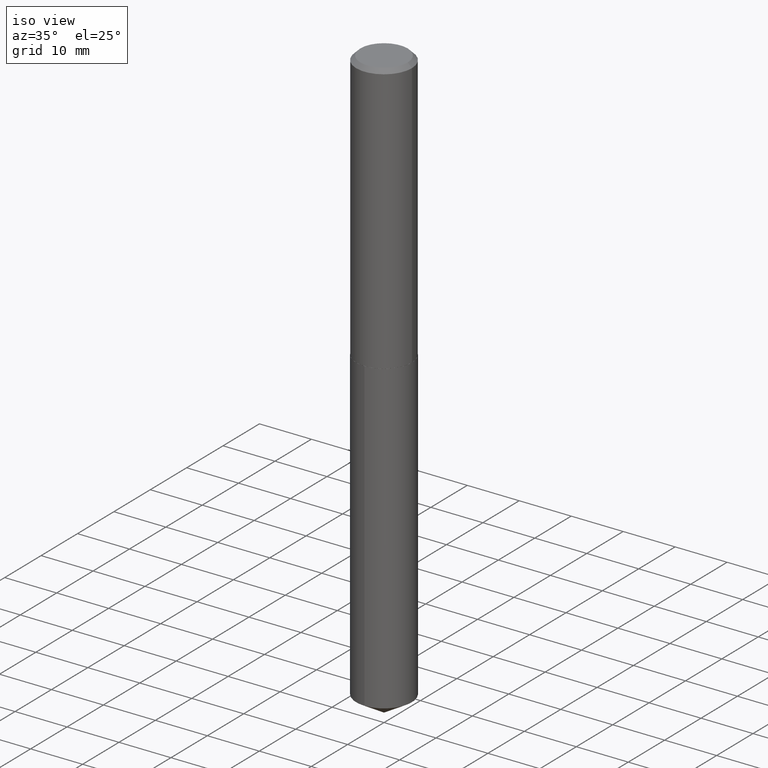
[diagram: clean part render]
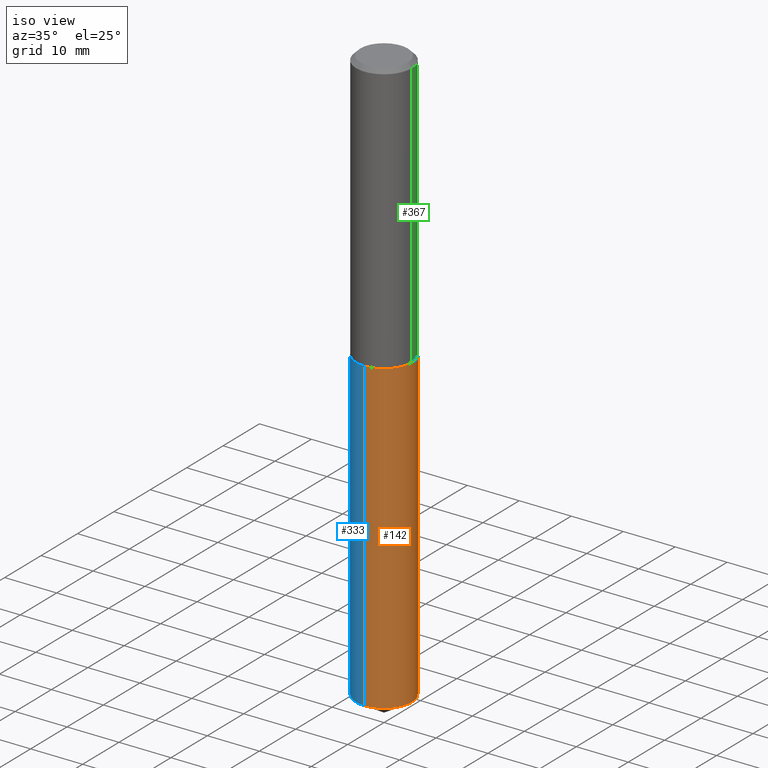
[diagram: same view with three faces highlighted in distinct colors, each labeled with its STEP entity id]
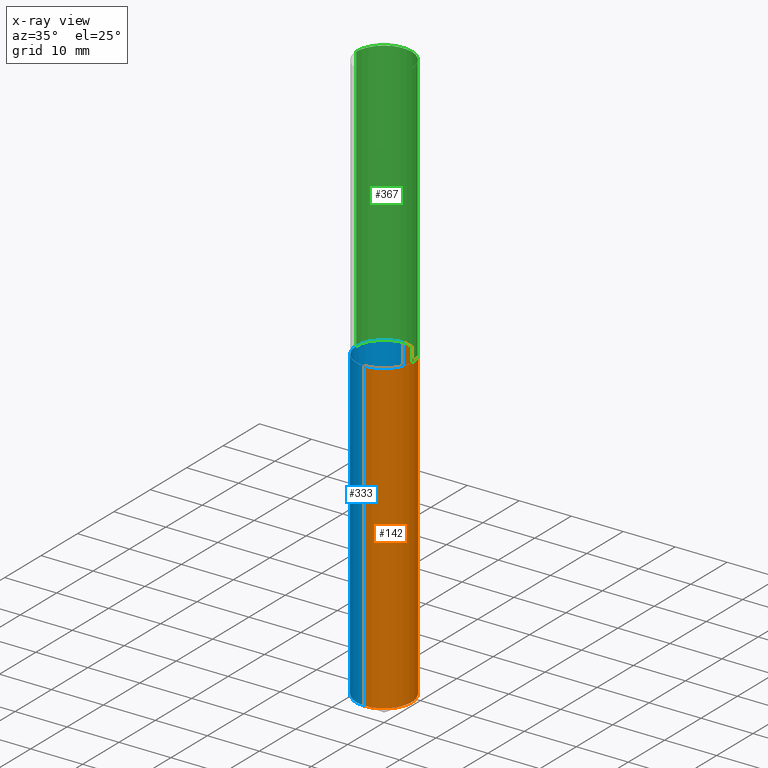
[diagram: x-ray of the same camera — body ghosted, the three highlighted faces saturated]
A machine part, iso view with three faces highlighted in distinct colors.
The next image is the same camera in x-ray (body ghosted, the three faces saturated) — at least one of them is partly hidden behind the body in this view.
Their STEP definitions:

[orange] entity #142 — the highlighted cylindrical surface (edge-blend (fillet) strip) has radius 5.3581 mm, axis along (-0, 0, 1).
#3 = EDGE_CURVE ( 'NONE', #141, #115, #196, .T. ) ;
#7 = CARTESIAN_POINT ( 'NONE',  ( -1.473055976857811069E-15, -0.2109500000000152919, -4.373248452416135912 ) ) ;
#19 = CIRCLE ( 'NONE', #301, 0.2109499999999999986 ) ;
#32 = CIRCLE ( 'NONE', #137, 0.2109499999999999986 ) ;
#36 = VECTOR ( 'NONE', #256, 39.37007874015748143 ) ;
#77 = ORIENTED_EDGE ( 'NONE', *, *, #359, .F. ) ;
#80 = CARTESIAN_POINT ( 'NONE',  ( 1.498889901085981031E-15, 0.2109499999999928654, -2.046900000000000830 ) ) ;
#81 = DIRECTION ( 'NONE',  ( -2.445408296409078411E-29, 3.491567992286463657E-15, 1.000000000000000000 ) ) ;
#87 = ORIENTED_EDGE ( 'NONE', *, *, #3, .T. ) ;
#90 = CARTESIAN_POINT ( 'NONE',  ( -1.473055976857867670E-15, -0.2109500000000071318, -2.046899999999999054 ) ) ;
#95 = CARTESIAN_POINT ( 'NONE',  ( 1.498889901086038617E-15, 0.2109499999999928654, -2.046900000000000830 ) ) ;
#97 = AXIS2_PLACEMENT_3D ( 'NONE', #200, #197, #99 ) ;
#99 = DIRECTION ( 'NONE',  ( -6.982962677686265922E-15, -1.000000000000000000, 3.885064698266314085E-15 ) ) ;
#100 = EDGE_CURVE ( 'NONE', #148, #141, #19, .T. ) ;
#115 = VERTEX_POINT ( 'NONE', #95 ) ;
#137 = AXIS2_PLACEMENT_3D ( 'NONE', #381, #190, #251 ) ;
#141 = VERTEX_POINT ( 'NONE', #235 ) ;
#142 = ADVANCED_FACE ( 'NONE', ( #258 ), #291, .T. ) ;
#148 = VERTEX_POINT ( 'NONE', #7 ) ;
#187 = VECTOR ( 'NONE', #81, 39.37007874015748143 ) ;
#190 = DIRECTION ( 'NONE',  ( -2.445408296409078411E-29, 3.491567992286463657E-15, 1.000000000000000000 ) ) ;
#196 = LINE ( 'NONE', #80, #36 ) ;
#197 = DIRECTION ( 'NONE',  ( -2.445408296409078411E-29, 3.491567992286463657E-15, 1.000000000000000000 ) ) ;
#200 = CARTESIAN_POINT ( 'NONE',  ( 5.005630099380355887E-29, -7.146713152478034511E-15, -2.046899999999999942 ) ) ;
#231 = DIRECTION ( 'NONE',  ( -2.445408296409078411E-29, 3.491567992286463657E-15, 1.000000000000000000 ) ) ;
#235 = CARTESIAN_POINT ( 'NONE',  ( 1.498889901086038420E-15, 0.2109499999999847886, -4.373248452416137688 ) ) ;
#251 = DIRECTION ( 'NONE',  ( -6.982962677686265922E-15, -1.000000000000000000, 3.885064698266314085E-15 ) ) ;
#256 = DIRECTION ( 'NONE',  ( -2.445408296409078411E-29, 3.491567992286463657E-15, 1.000000000000000000 ) ) ;
#258 = FACE_OUTER_BOUND ( 'NONE', #268, .T. ) ;
#265 = ORIENTED_EDGE ( 'NONE', *, *, #100, .T. ) ;
#268 = EDGE_LOOP ( 'NONE', ( #265, #87, #293, #77 ) ) ;
#291 = CYLINDRICAL_SURFACE ( 'NONE', #97, 0.2109499999999999986 ) ;
#293 = ORIENTED_EDGE ( 'NONE', *, *, #354, .F. ) ;
#301 = AXIS2_PLACEMENT_3D ( 'NONE', #314, #231, #313 ) ;
#313 = DIRECTION ( 'NONE',  ( -6.982962677686265922E-15, -1.000000000000000000, 2.590043132177542855E-15 ) ) ;
#314 = CARTESIAN_POINT ( 'NONE',  ( 1.069450190525719533E-28, -1.526931694783936594E-14, -4.373248452416136800 ) ) ;
#353 = VERTEX_POINT ( 'NONE', #385 ) ;
#354 = EDGE_CURVE ( 'NONE', #353, #115, #32, .T. ) ;
#359 = EDGE_CURVE ( 'NONE', #148, #353, #361, .T. ) ;
#361 = LINE ( 'NONE', #90, #187 ) ;
#381 = CARTESIAN_POINT ( 'NONE',  ( 5.005630099380355887E-29, -7.146713152478034511E-15, -2.046899999999999942 ) ) ;
#385 = CARTESIAN_POINT ( 'NONE',  ( -1.473055976857867670E-15, -0.2109500000000071318, -2.046899999999999054 ) ) ;

[blue] entity #333 — the highlighted cylindrical surface (edge-blend (fillet) strip) has radius 5.3581 mm, axis along (-0, 0, 1).
#3 = EDGE_CURVE ( 'NONE', #141, #115, #196, .T. ) ;
#5 = CARTESIAN_POINT ( 'NONE',  ( 5.005630099380355887E-29, -7.146713152478034511E-15, -2.046899999999999942 ) ) ;
#7 = CARTESIAN_POINT ( 'NONE',  ( -1.473055976857811069E-15, -0.2109500000000152919, -4.373248452416135912 ) ) ;
#26 = EDGE_CURVE ( 'NONE', #141, #148, #215, .T. ) ;
#28 = CARTESIAN_POINT ( 'NONE',  ( 5.005630099380355887E-29, -7.146713152478034511E-15, -2.046899999999999942 ) ) ;
#33 = CYLINDRICAL_SURFACE ( 'NONE', #261, 0.2109499999999999986 ) ;
#36 = VECTOR ( 'NONE', #256, 39.37007874015748143 ) ;
#61 = DIRECTION ( 'NONE',  ( -2.445408296409078411E-29, 3.491567992286463657E-15, 1.000000000000000000 ) ) ;
#79 = AXIS2_PLACEMENT_3D ( 'NONE', #323, #61, #92 ) ;
#80 = CARTESIAN_POINT ( 'NONE',  ( 1.498889901085981031E-15, 0.2109499999999928654, -2.046900000000000830 ) ) ;
#81 = DIRECTION ( 'NONE',  ( -2.445408296409078411E-29, 3.491567992286463657E-15, 1.000000000000000000 ) ) ;
#90 = CARTESIAN_POINT ( 'NONE',  ( -1.473055976857867670E-15, -0.2109500000000071318, -2.046899999999999054 ) ) ;
#91 = DIRECTION ( 'NONE',  ( -2.445408296409078411E-29, 3.491567992286463657E-15, 1.000000000000000000 ) ) ;
#92 = DIRECTION ( 'NONE',  ( -6.982962677686265922E-15, -1.000000000000000000, 2.590043132177542855E-15 ) ) ;
#95 = CARTESIAN_POINT ( 'NONE',  ( 1.498889901086038617E-15, 0.2109499999999928654, -2.046900000000000830 ) ) ;
#115 = VERTEX_POINT ( 'NONE', #95 ) ;
#138 = EDGE_CURVE ( 'NONE', #115, #353, #335, .T. ) ;
#140 = ORIENTED_EDGE ( 'NONE', *, *, #138, .F. ) ;
#141 = VERTEX_POINT ( 'NONE', #235 ) ;
#143 = AXIS2_PLACEMENT_3D ( 'NONE', #5, #287, #332 ) ;
#148 = VERTEX_POINT ( 'NONE', #7 ) ;
#163 = FACE_OUTER_BOUND ( 'NONE', #321, .T. ) ;
#187 = VECTOR ( 'NONE', #81, 39.37007874015748143 ) ;
#196 = LINE ( 'NONE', #80, #36 ) ;
#215 = CIRCLE ( 'NONE', #79, 0.2109499999999999986 ) ;
#226 = DIRECTION ( 'NONE',  ( -6.982962677686265922E-15, -1.000000000000000000, 3.885064698266314085E-15 ) ) ;
#235 = CARTESIAN_POINT ( 'NONE',  ( 1.498889901086038420E-15, 0.2109499999999847886, -4.373248452416137688 ) ) ;
#243 = ORIENTED_EDGE ( 'NONE', *, *, #3, .F. ) ;
#256 = DIRECTION ( 'NONE',  ( -2.445408296409078411E-29, 3.491567992286463657E-15, 1.000000000000000000 ) ) ;
#261 = AXIS2_PLACEMENT_3D ( 'NONE', #28, #91, #226 ) ;
#266 = ORIENTED_EDGE ( 'NONE', *, *, #26, .T. ) ;
#287 = DIRECTION ( 'NONE',  ( -2.445408296409078411E-29, 3.491567992286463657E-15, 1.000000000000000000 ) ) ;
#321 = EDGE_LOOP ( 'NONE', ( #243, #266, #368, #140 ) ) ;
#323 = CARTESIAN_POINT ( 'NONE',  ( 1.069450190525719533E-28, -1.526931694783936594E-14, -4.373248452416136800 ) ) ;
#332 = DIRECTION ( 'NONE',  ( -6.982962677686265922E-15, -1.000000000000000000, 3.885064698266314085E-15 ) ) ;
#333 = ADVANCED_FACE ( 'NONE', ( #163 ), #33, .T. ) ;
#335 = CIRCLE ( 'NONE', #143, 0.2109499999999999986 ) ;
#353 = VERTEX_POINT ( 'NONE', #385 ) ;
#359 = EDGE_CURVE ( 'NONE', #148, #353, #361, .T. ) ;
#361 = LINE ( 'NONE', #90, #187 ) ;
#368 = ORIENTED_EDGE ( 'NONE', *, *, #359, .T. ) ;
#385 = CARTESIAN_POINT ( 'NONE',  ( -1.473055976857867670E-15, -0.2109500000000071318, -2.046899999999999054 ) ) ;

[green] entity #367 — the highlighted cylindrical surface (edge-blend (fillet) strip) has radius 5.3581 mm, axis along (-0, 0, 1).
#11 = VECTOR ( 'NONE', #316, 39.37007874015748143 ) ;
#27 = FACE_OUTER_BOUND ( 'NONE', #319, .T. ) ;
#41 = ORIENTED_EDGE ( 'NONE', *, *, #131, .T. ) ;
#42 = CARTESIAN_POINT ( 'NONE',  ( -0.2109500000000001096, 1.498889901085932121E-15, -1.037649357289272942E-29 ) ) ;
#83 = DIRECTION ( 'NONE',  ( -2.445468806185136597E-29, 3.491481338843145583E-15, 1.000000000000000000 ) ) ;
#107 = ORIENTED_EDGE ( 'NONE', *, *, #280, .F. ) ;
#110 = CARTESIAN_POINT ( 'NONE',  ( 0.2109500000000002207, -8.618023388666532939E-15, -2.046400000000000219 ) ) ;
#122 = CARTESIAN_POINT ( 'NONE',  ( -0.2109500000000002207, -5.646077510722680294E-15, -2.046400000000000219 ) ) ;
#124 = CIRCLE ( 'NONE', #344, 0.2109500000000002207 ) ;
#131 = EDGE_CURVE ( 'NONE', #184, #252, #124, .T. ) ;
#139 = DIRECTION ( 'NONE',  ( -2.445468806185136597E-29, 3.491481338843145583E-15, 1.000000000000000000 ) ) ;
#146 = ORIENTED_EDGE ( 'NONE', *, *, #201, .F. ) ;
#151 = LINE ( 'NONE', #271, #11 ) ;
#154 = VERTEX_POINT ( 'NONE', #169 ) ;
#161 = DIRECTION ( 'NONE',  ( -2.445468806185136597E-29, 3.491481338843145583E-15, 1.000000000000000000 ) ) ;
#169 = CARTESIAN_POINT ( 'NONE',  ( 0.2109499999999999986, -1.582164768696767060E-15, -0.03125000000000020123 ) ) ;
#170 = CIRCLE ( 'NONE', #232, 0.2109499999999999986 ) ;
#171 = CARTESIAN_POINT ( 'NONE',  ( 5.004407364977263646E-29, -7.144967411808613796E-15, -2.046400000000000219 ) ) ;
#178 = AXIS2_PLACEMENT_3D ( 'NONE', #325, #83, #222 ) ;
#184 = VERTEX_POINT ( 'NONE', #110 ) ;
#188 = ORIENTED_EDGE ( 'NONE', *, *, #211, .T. ) ;
#198 = DIRECTION ( 'NONE',  ( 1.000000000000000000, -6.982962677686269077E-15, 0.000000000000000000 ) ) ;
#201 = EDGE_CURVE ( 'NONE', #184, #154, #151, .T. ) ;
#211 = EDGE_CURVE ( 'NONE', #252, #378, #337, .T. ) ;
#221 = DIRECTION ( 'NONE',  ( 1.000000000000000000, -6.982962677686266711E-15, 0.000000000000000000 ) ) ;
#222 = DIRECTION ( 'NONE',  ( 1.000000000000000000, -6.982962677686266711E-15, 4.876176775795935793E-29 ) ) ;
#232 = AXIS2_PLACEMENT_3D ( 'NONE', #356, #161, #221 ) ;
#236 = VECTOR ( 'NONE', #241, 39.37007874015748143 ) ;
#241 = DIRECTION ( 'NONE',  ( -2.445468806185136877E-29, 3.491481338843145188E-15, 1.000000000000000000 ) ) ;
#252 = VERTEX_POINT ( 'NONE', #122 ) ;
#260 = CARTESIAN_POINT ( 'NONE',  ( -0.2109499999999999986, -2.128148200737798736E-15, -0.03125000000000020123 ) ) ;
#271 = CARTESIAN_POINT ( 'NONE',  ( 0.2109500000000001096, -1.473055976857918748E-15, 1.028629490854153189E-29 ) ) ;
#280 = EDGE_CURVE ( 'NONE', #154, #378, #170, .T. ) ;
#308 = CYLINDRICAL_SURFACE ( 'NONE', #178, 0.2109500000000001096 ) ;
#316 = DIRECTION ( 'NONE',  ( -2.445468806185136877E-29, 3.491481338843145188E-15, 1.000000000000000000 ) ) ;
#319 = EDGE_LOOP ( 'NONE', ( #41, #188, #107, #146 ) ) ;
#325 = CARTESIAN_POINT ( 'NONE',  ( 0.000000000000000000, 0.000000000000000000, 0.000000000000000000 ) ) ;
#337 = LINE ( 'NONE', #42, #236 ) ;
#344 = AXIS2_PLACEMENT_3D ( 'NONE', #171, #139, #198 ) ;
#356 = CARTESIAN_POINT ( 'NONE',  ( 7.642090019328600035E-31, -1.091087918388489897E-16, -0.03125000000000020123 ) ) ;
#367 = ADVANCED_FACE ( 'NONE', ( #27 ), #308, .T. ) ;
#378 = VERTEX_POINT ( 'NONE', #260 ) ;